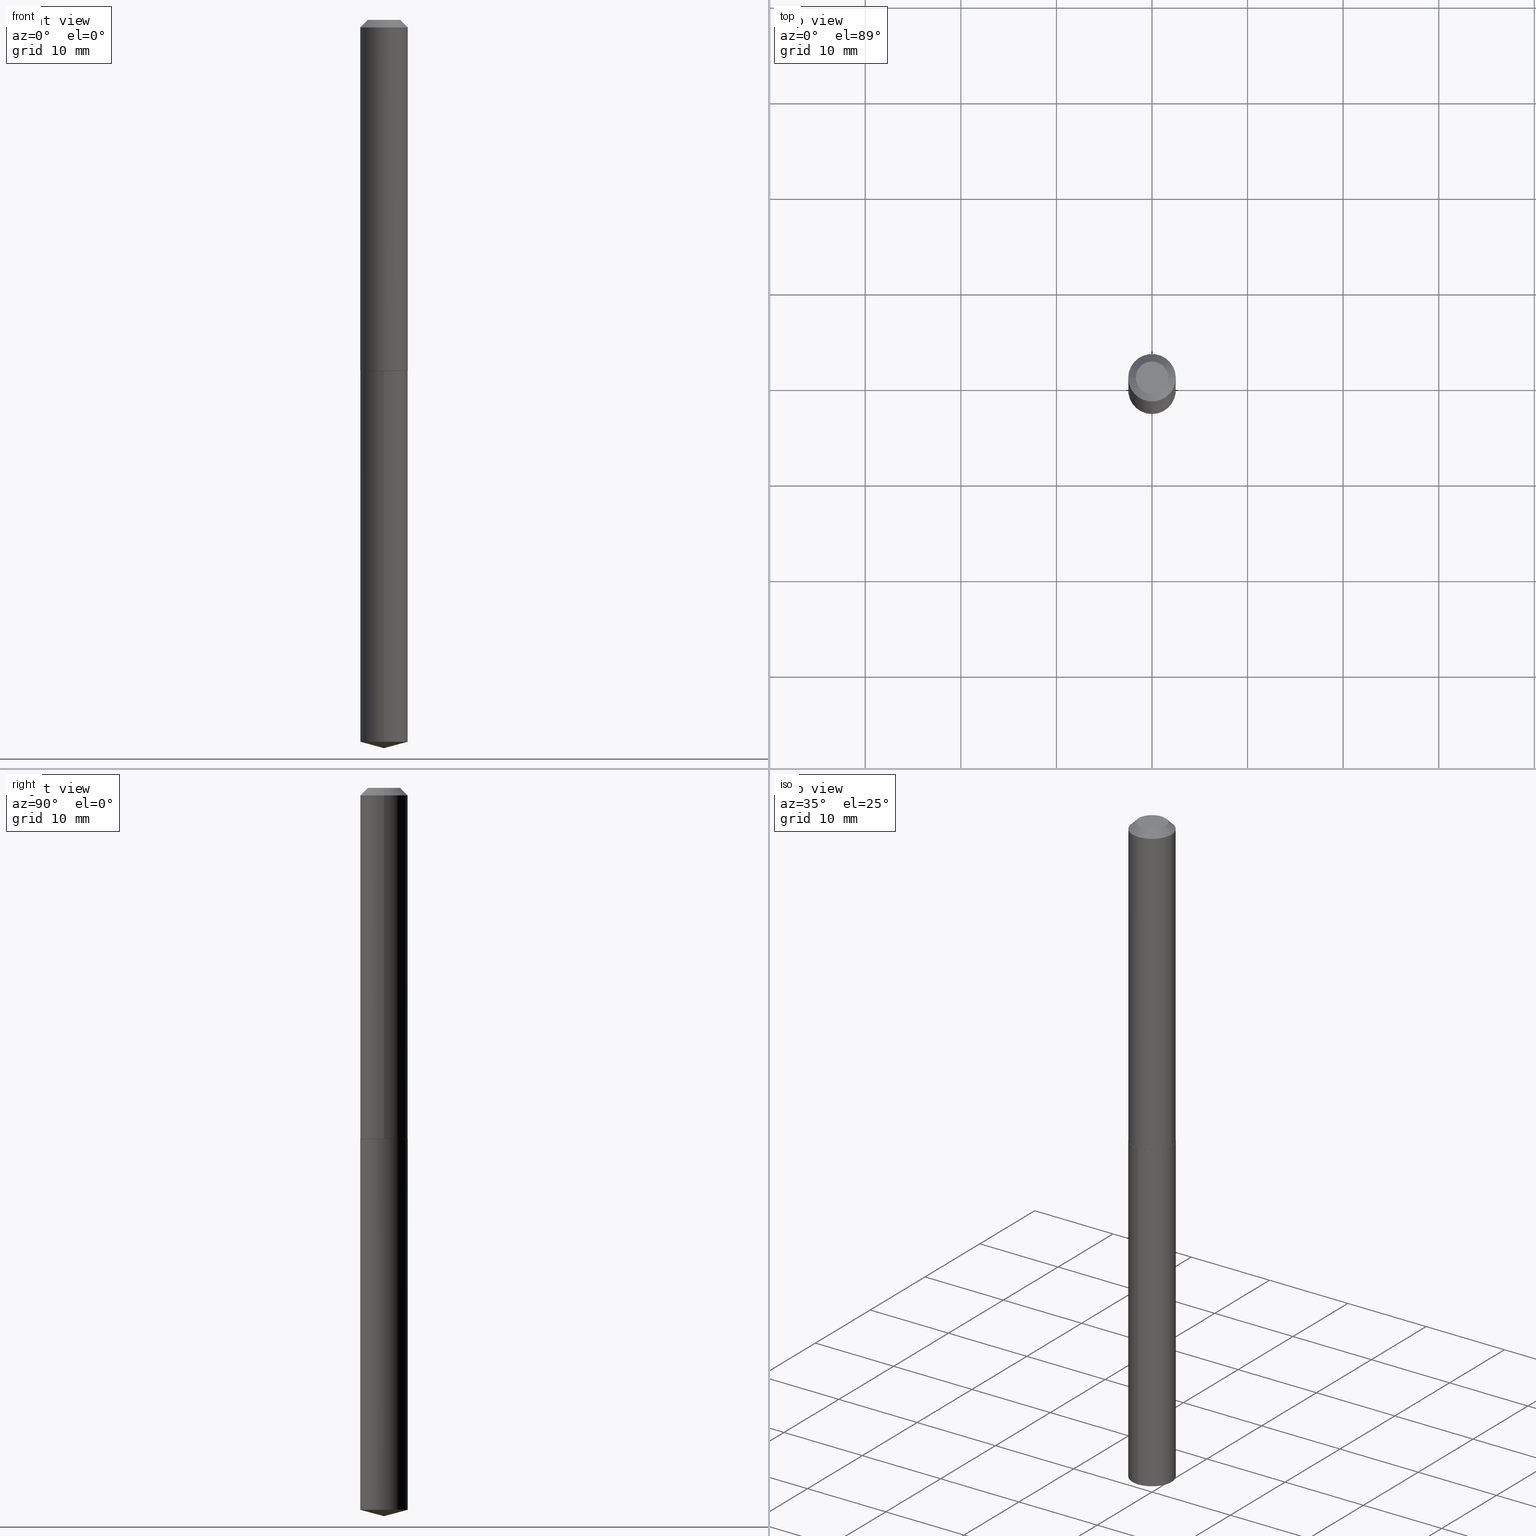
[diagram: canonical four-view strip — front | top / right | iso, engineering-drawing reading convention]
A machine part, canonical four-view strip (front | top / right | iso — engineering-drawing reading convention). The complete STEP part file that produces these views, byte-faithful:
ISO-10303-21;
HEADER;
FILE_DESCRIPTION (( 'STEP AP203' ),
    '1' );
FILE_NAME ('58044.STEP',
    '2024-04-23T00:48:45',
    ( '' ),
    ( '' ),
    'SwSTEP 2.0',
    'SolidWorks 2023',
    '' );
FILE_SCHEMA (( 'CONFIG_CONTROL_DESIGN' ));
ENDSEC;

DATA;
#1 = CARTESIAN_POINT ( 'NONE',  ( 6.963318810449705870E-16, 0.09799999999998960931, -2.973740979141750618 ) ) ;
#2 = EDGE_CURVE ( 'NONE', #343, #225, #13, .T. ) ;
#3 = DIRECTION ( 'NONE',  ( -2.445476842766525391E-29, 3.491469830001183236E-15, 1.000000000000000000 ) ) ;
#4 = DIRECTION ( 'NONE',  ( 2.445476842766525111E-29, -3.491469830001182842E-15, -1.000000000000000000 ) ) ;
#5 = APPLICATION_CONTEXT ( 'configuration controlled 3d designs of mechanical parts and assemblies' ) ;
#6 = CIRCLE ( 'NONE', #228, 0.06675000000000000377 ) ;
#7 = CARTESIAN_POINT ( 'NONE',  ( -6.843303424132187493E-16, -0.09800000000000505529, -1.445999999999999730 ) ) ;
#8 = EDGE_CURVE ( 'NONE', #292, #285, #87, .T. ) ;
#9 = CARTESIAN_POINT ( 'NONE',  ( -0.09800000000000015643, -4.350604394252867598E-15, -1.445500000000000229 ) ) ;
#10 = ORIENTED_EDGE ( 'NONE', *, *, #171, .F. ) ;
#11 = CC_DESIGN_PERSON_AND_ORGANIZATION_ASSIGNMENT ( #317, #46, ( #362 ) ) ;
#12 = ORIENTED_EDGE ( 'NONE', *, *, #113, .T. ) ;
#13 = CIRCLE ( 'NONE', #110, 0.09800000000000000377 ) ;
#14 = AXIS2_PLACEMENT_3D ( 'NONE', #303, #270, #183 ) ;
#15 = CC_DESIGN_DATE_AND_TIME_ASSIGNMENT ( #214, #27, ( #333 ) ) ;
#16 = EDGE_LOOP ( 'NONE', ( #47, #287, #290, #319 ) ) ;
#17 = EDGE_CURVE ( 'NONE', #310, #104, #260, .T. ) ;
#18 = DIRECTION ( 'NONE',  ( 1.000000000000000000, -6.982962677686266711E-15, 0.000000000000000000 ) ) ;
#19 = LOCAL_TIME ( 20, 48, 45.00000000000000000, #387 ) ;
#20 = AXIS2_PLACEMENT_3D ( 'NONE', #247, #4, #129 ) ;
#21 = ORIENTED_EDGE ( 'NONE', *, *, #83, .T. ) ;
#22 = APPROVAL_STATUS ( 'not_yet_approved' ) ;
#23 = PLANE ( 'NONE',  #312 ) ;
#24 = DIRECTION ( 'NONE',  ( 0.7071067811867406405, -2.468850131084279700E-15, 0.7071067811863543939 ) ) ;
#25 = ORIENTED_EDGE ( 'NONE', *, *, #275, .F. ) ;
#26 = EDGE_CURVE ( 'NONE', #296, #316, #251, .T. ) ;
#27 = DATE_TIME_ROLE ( 'creation_date' ) ;
#28 = VERTEX_POINT ( 'NONE', #174 ) ;
#29 = CARTESIAN_POINT ( 'NONE',  ( 7.272203079980314152E-29, -1.038274355269707335E-14, -2.973740979141749730 ) ) ;
#30 = PERSON_AND_ORGANIZATION ( #248, #313 ) ;
#31 = CARTESIAN_POINT ( 'NONE',  ( 7.642090019328598283E-31, -1.091087918388489651E-16, -0.03125000000000019429 ) ) ;
#32 = ADVANCED_FACE ( 'NONE', ( #210 ), #213, .T. ) ;
#33 = VECTOR ( 'NONE', #221, 39.37007874015748143 ) ;
#34 = DIRECTION ( 'NONE',  ( -2.445468806185136597E-29, 3.491481338843145583E-15, 1.000000000000000000 ) ) ;
#35 = ADVANCED_FACE ( 'NONE', ( #348 ), #334, .T. ) ;
#36 = LINE ( 'NONE', #190, #267 ) ;
#37 = AXIS2_PLACEMENT_3D ( 'NONE', #141, #324, #61 ) ;
#38 = ORIENTED_EDGE ( 'NONE', *, *, #280, .T. ) ;
#39 = AXIS2_PLACEMENT_3D ( 'NONE', #346, #79, #106 ) ;
#40 = APPROVAL ( #244, 'UNSPECIFIED' ) ;
#41 = DIRECTION ( 'NONE',  ( -6.982962677686265922E-15, -1.000000000000000000, 2.787599993534962411E-15 ) ) ;
#42 = EDGE_LOOP ( 'NONE', ( #385, #227, #151, #107 ) ) ;
#43 = ADVANCED_FACE ( 'NONE', ( #82 ), #218, .T. ) ;
#44 = ORIENTED_EDGE ( 'NONE', *, *, #306, .F. ) ;
#45 = DESIGN_CONTEXT ( 'detailed design', #125, 'design' ) ;
#46 = PERSON_AND_ORGANIZATION_ROLE ( 'design_owner' ) ;
#47 = ORIENTED_EDGE ( 'NONE', *, *, #237, .T. ) ;
#48 = LINE ( 'NONE', #81, #191 ) ;
#49 = VECTOR ( 'NONE', #196, 39.37007874015748143 ) ;
#50 = VECTOR ( 'NONE', #162, 39.37007874015748143 ) ;
#51 = VECTOR ( 'NONE', #100, 39.37007874015748143 ) ;
#52 = ORIENTED_EDGE ( 'NONE', *, *, #2, .T. ) ;
#53 = CARTESIAN_POINT ( 'NONE',  ( 7.642090019328598283E-31, -1.091087918388489651E-16, -0.03125000000000019429 ) ) ;
#54 = DIRECTION ( 'NONE',  ( -6.982962677686265922E-15, -1.000000000000000000, 2.787599993534962411E-15 ) ) ;
#55 = DIRECTION ( 'NONE',  ( 1.000000000000000000, -6.982962677686271444E-15, 0.000000000000000000 ) ) ;
#56 = ADVANCED_FACE ( 'NONE', ( #273 ), #23, .F. ) ;
#57 = APPROVAL_DATE_TIME ( #238, #341 ) ;
#58 = CARTESIAN_POINT ( 'NONE',  ( 7.272203079980314152E-29, -1.038274355269707335E-14, -2.973740979141749730 ) ) ;
#59 = FACE_OUTER_BOUND ( 'NONE', #388, .T. ) ;
#60 = PERSON_AND_ORGANIZATION ( #248, #313 ) ;
#61 = DIRECTION ( 'NONE',  ( 1.000000000000000000, -6.982962677686271444E-15, 0.000000000000000000 ) ) ;
#62 = DIRECTION ( 'NONE',  ( -6.982962677686265922E-15, -1.000000000000000000, 5.575199987069924823E-15 ) ) ;
#63 = AXIS2_PLACEMENT_3D ( 'NONE', #31, #353, #332 ) ;
#64 = LOCAL_TIME ( 20, 48, 45.00000000000000000, #331 ) ;
#65 = CALENDAR_DATE ( 2024, 22, 4 ) ;
#66 = EDGE_CURVE ( 'NONE', #28, #343, #201, .T. ) ;
#67 = DIRECTION ( 'NONE',  ( 6.863315791527686371E-15, 0.9659258262890684232, 0.2588190451025201289 ) ) ;
#68 = FACE_OUTER_BOUND ( 'NONE', #315, .T. ) ;
#69 = AXIS2_PLACEMENT_3D ( 'NONE', #168, #88, #158 ) ;
#70 =( GEOMETRIC_REPRESENTATION_CONTEXT ( 3 ) GLOBAL_UNCERTAINTY_ASSIGNED_CONTEXT ( ( #105 ) ) GLOBAL_UNIT_ASSIGNED_CONTEXT ( ( #226, #136, #259 ) ) REPRESENTATION_CONTEXT ( 'NONE', 'WORKASPACE' ) );
#71 = FACE_OUTER_BOUND ( 'NONE', #155, .T. ) ;
#72 = CARTESIAN_POINT ( 'NONE',  ( 0.09800000000000000377, -7.934391342521031515E-16, -0.03125000000000019429 ) ) ;
#73 = ORIENTED_EDGE ( 'NONE', *, *, #89, .T. ) ;
#74 = ORIENTED_EDGE ( 'NONE', *, *, #17, .F. ) ;
#75 = ORIENTED_EDGE ( 'NONE', *, *, #243, .F. ) ;
#76 = ORIENTED_EDGE ( 'NONE', *, *, #202, .T. ) ;
#77 = AXIS2_PLACEMENT_3D ( 'NONE', #112, #326, #232 ) ;
#78 = PRODUCT_DEFINITION_FORMATION_WITH_SPECIFIED_SOURCE ( 'ANY', '', #362, .NOT_KNOWN. ) ;
#79 = DIRECTION ( 'NONE',  ( 0.000000000000000000, 0.000000000000000000, 1.000000000000000000 ) ) ;
#80 = DIRECTION ( 'NONE',  ( -6.982962677686265922E-15, -1.000000000000000000, 3.510303681827680271E-15 ) ) ;
#81 = CARTESIAN_POINT ( 'NONE',  ( 0.09800000000000000377, -7.814375956204590920E-16, -0.03125000000000019429 ) ) ;
#82 = FACE_OUTER_BOUND ( 'NONE', #119, .T. ) ;
#83 = EDGE_CURVE ( 'NONE', #177, #292, #118, .T. ) ;
#84 = PERSON_AND_ORGANIZATION_ROLE ( 'creator' ) ;
#85 = ORIENTED_EDGE ( 'NONE', *, *, #128, .T. ) ;
#86 = PERSON_AND_ORGANIZATION ( #248, #313 ) ;
#87 = LINE ( 'NONE', #148, #173 ) ;
#88 = DIRECTION ( 'NONE',  ( -2.445476842766525391E-29, 3.491469830001183236E-15, 1.000000000000000000 ) ) ;
#89 = EDGE_CURVE ( 'NONE', #285, #134, #366, .T. ) ;
#90 = PERSON_AND_ORGANIZATION ( #248, #313 ) ;
#91 = FACE_OUTER_BOUND ( 'NONE', #139, .T. ) ;
#92 = AXIS2_PLACEMENT_3D ( 'NONE', #185, #116, #354 ) ;
#93 = COORDINATED_UNIVERSAL_TIME_OFFSET ( 5, 0, .BEHIND. ) ;
#94 = DIRECTION ( 'NONE',  ( 1.000000000000000000, -6.982962677686269866E-15, 0.000000000000000000 ) ) ;
#95 = EDGE_CURVE ( 'NONE', #316, #296, #234, .T. ) ;
#96 = CONICAL_SURFACE ( 'NONE', #170, 0.09800000000000015643, 0.7853981633977213939 ) ;
#97 = VECTOR ( 'NONE', #182, 39.37007874015748143 ) ;
#98 = CARTESIAN_POINT ( 'NONE',  ( -0.06675000000000000377, 5.206671546549817804E-16, 1.530808498899695196E-19 ) ) ;
#99 = CARTESIAN_POINT ( 'NONE',  ( -0.09750000000000025313, -4.353253621426978011E-15, -1.445999999999999730 ) ) ;
#100 = DIRECTION ( 'NONE',  ( -0.7071067811867406405, 7.493145998871051513E-15, 0.7071067811863543939 ) ) ;
#101 =( LENGTH_UNIT ( ) NAMED_UNIT ( * ) SI_UNIT ( $, .METRE. ) );
#102 = ORIENTED_EDGE ( 'NONE', *, *, #128, .F. ) ;
#103 = LOCAL_TIME ( 20, 48, 45.00000000000000000, #115 ) ;
#104 = VERTEX_POINT ( 'NONE', #99 ) ;
#105 = UNCERTAINTY_MEASURE_WITH_UNIT (LENGTH_MEASURE( 1.000000000000000082E-05 ), #226, 'distance_accuracy_value', 'NONE');
#106 = DIRECTION ( 'NONE',  ( 1.000000000000000000, 0.000000000000000000, 0.000000000000000000 ) ) ;
#107 = ORIENTED_EDGE ( 'NONE', *, *, #95, .F. ) ;
#108 = ADVANCED_FACE ( 'NONE', ( #114 ), #135, .T. ) ;
#109 = ORIENTED_EDGE ( 'NONE', *, *, #8, .T. ) ;
#110 = AXIS2_PLACEMENT_3D ( 'NONE', #58, #298, #263 ) ;
#111 = DIRECTION ( 'NONE',  ( -2.445476842766525391E-29, 3.491469830001183236E-15, 1.000000000000000000 ) ) ;
#112 = CARTESIAN_POINT ( 'NONE',  ( -8.894219694954694186E-28, 1.269850159942418059E-13, 36.37007874015748143 ) ) ;
#113 = EDGE_CURVE ( 'NONE', #231, #285, #48, .T. ) ;
#114 = FACE_OUTER_BOUND ( 'NONE', #42, .T. ) ;
#115 = COORDINATED_UNIVERSAL_TIME_OFFSET ( 5, 0, .BEHIND. ) ;
#116 = DIRECTION ( 'NONE',  ( -2.445476842766525391E-29, 3.491469830001183236E-15, 1.000000000000000000 ) ) ;
#117 = DIRECTION ( 'NONE',  ( -2.445468806185136597E-29, 3.491481338843145583E-15, 1.000000000000000000 ) ) ;
#118 = CIRCLE ( 'NONE', #289, 0.09800000000000015643 ) ;
#119 = EDGE_LOOP ( 'NONE', ( #205, #85, #223 ) ) ;
#120 = CARTESIAN_POINT ( 'NONE',  ( 7.642090019328598283E-31, -1.091087918388489651E-16, -0.03125000000000019429 ) ) ;
#121 = PERSON_AND_ORGANIZATION ( #248, #313 ) ;
#122 = CARTESIAN_POINT ( 'NONE',  ( -8.894219694954694186E-28, 1.269850159942418059E-13, 36.37007874015748143 ) ) ;
#123 = DIRECTION ( 'NONE',  ( 1.000000000000000000, -6.982962677686271444E-15, 0.000000000000000000 ) ) ;
#124 = CALENDAR_DATE ( 2024, 22, 4 ) ;
#125 = APPLICATION_CONTEXT ( 'configuration controlled 3d designs of mechanical parts and assemblies' ) ;
#126 = CARTESIAN_POINT ( 'NONE',  ( 3.534925159340615318E-29, -5.046936275297767188E-15, -1.445500000000000229 ) ) ;
#127 = CARTESIAN_POINT ( 'NONE',  ( 0.000000000000000000, 0.000000000000000000, 0.000000000000000000 ) ) ;
#128 = EDGE_CURVE ( 'NONE', #28, #225, #164, .T. ) ;
#129 = DIRECTION ( 'NONE',  ( 6.982962677686265922E-15, 1.000000000000000000, -3.491469830001182842E-15 ) ) ;
#130 = DIRECTION ( 'NONE',  ( -2.445468806185136597E-29, 3.491481338843145583E-15, 1.000000000000000000 ) ) ;
#131 = AXIS2_PLACEMENT_3D ( 'NONE', #377, #111, #54 ) ;
#132 = AXIS2_PLACEMENT_3D ( 'NONE', #127, #34, #365 ) ;
#133 = CARTESIAN_POINT ( 'NONE',  ( 0.000000000000000000, 0.000000000000000000, 0.000000000000000000 ) ) ;
#134 = VERTEX_POINT ( 'NONE', #206 ) ;
#135 = CYLINDRICAL_SURFACE ( 'NONE', #69, 0.09800000000000000377 ) ;
#136 =( NAMED_UNIT ( * ) PLANE_ANGLE_UNIT ( ) SI_UNIT ( $, .RADIAN. ) );
#137 = EDGE_LOOP ( 'NONE', ( #369, #38, #382, #165 ) ) ;
#138 = AXIS2_PLACEMENT_3D ( 'NONE', #29, #189, #62 ) ;
#139 = EDGE_LOOP ( 'NONE', ( #351, #258, #372, #257 ) ) ;
#140 = ORIENTED_EDGE ( 'NONE', *, *, #26, .F. ) ;
#141 = CARTESIAN_POINT ( 'NONE',  ( 3.534925159340615318E-29, -5.046936275297767188E-15, -1.445500000000000229 ) ) ;
#142 = AXIS2_PLACEMENT_3D ( 'NONE', #53, #180, #18 ) ;
#143 = EDGE_CURVE ( 'NONE', #347, #231, #6, .T. ) ;
#144 = PERSON_AND_ORGANIZATION_ROLE ( 'classification_officer' ) ;
#145 = ORIENTED_EDGE ( 'NONE', *, *, #95, .T. ) ;
#146 = APPROVAL ( #204, 'UNSPECIFIED' ) ;
#147 = APPROVAL_ROLE ( '' ) ;
#148 = CARTESIAN_POINT ( 'NONE',  ( 0.09800000000000008704, -6.843303424132548397E-16, 4.778653240280021785E-30 ) ) ;
#149 = DIRECTION ( 'NONE',  ( -2.445468806185136597E-29, 3.491481338843145583E-15, 1.000000000000000000 ) ) ;
#150 = APPROVAL_ROLE ( '' ) ;
#151 = ORIENTED_EDGE ( 'NONE', *, *, #360, .T. ) ;
#152 = DIRECTION ( 'NONE',  ( 1.000000000000000000, -6.982962677686271444E-15, 0.000000000000000000 ) ) ;
#153 = AXIS2_PLACEMENT_3D ( 'NONE', #249, #338, #94 ) ;
#154 = PERSON_AND_ORGANIZATION_ROLE ( 'creator' ) ;
#155 = EDGE_LOOP ( 'NONE', ( #236, #21, #109, #75 ) ) ;
#156 = DATE_TIME_ROLE ( 'classification_date' ) ;
#157 = FACE_OUTER_BOUND ( 'NONE', #166, .T. ) ;
#158 = DIRECTION ( 'NONE',  ( -6.982962677686265922E-15, -1.000000000000000000, 2.787599993534962411E-15 ) ) ;
#159 = CC_DESIGN_APPROVAL ( #40, ( #293 ) ) ;
#160 = ADVANCED_FACE ( 'NONE', ( #91 ), #219, .T. ) ;
#161 = FACE_OUTER_BOUND ( 'NONE', #16, .T. ) ;
#162 = DIRECTION ( 'NONE',  ( -2.445476842766525391E-29, 3.491469830001182842E-15, 1.000000000000000000 ) ) ;
#163 = CARTESIAN_POINT ( 'NONE',  ( 3.536147893743707559E-29, -5.048682015967188692E-15, -1.446000000000000174 ) ) ;
#164 = LINE ( 'NONE', #328, #352 ) ;
#165 = ORIENTED_EDGE ( 'NONE', *, *, #202, .F. ) ;
#166 = EDGE_LOOP ( 'NONE', ( #74, #203 ) ) ;
#167 = ORIENTED_EDGE ( 'NONE', *, *, #376, .T. ) ;
#168 = CARTESIAN_POINT ( 'NONE',  ( 3.536147893743707559E-29, -5.048682015967188692E-15, -1.446000000000000174 ) ) ;
#169 = ADVANCED_BREP_SHAPE_REPRESENTATION ( '58044', ( #383, #262, #39 ), #70 ) ;
#170 = AXIS2_PLACEMENT_3D ( 'NONE', #325, #389, #123 ) ;
#171 = EDGE_CURVE ( 'NONE', #225, #343, #192, .T. ) ;
#172 = ORIENTED_EDGE ( 'NONE', *, *, #280, .F. ) ;
#173 = VECTOR ( 'NONE', #327, 39.37007874015748143 ) ;
#174 = CARTESIAN_POINT ( 'NONE',  ( 7.336430528299575892E-29, -1.047440949000354971E-14, -3.000000000000000444 ) ) ;
#175 = ADVANCED_FACE ( 'NONE', ( #302 ), #96, .T. ) ;
#176 = DATE_AND_TIME ( #184, #278 ) ;
#177 = VERTEX_POINT ( 'NONE', #386 ) ;
#178 = CC_DESIGN_SECURITY_CLASSIFICATION ( #293, ( #78 ) ) ;
#179 = CC_DESIGN_PERSON_AND_ORGANIZATION_ASSIGNMENT ( #90, #295, ( #78 ) ) ;
#180 = DIRECTION ( 'NONE',  ( -2.445468806185136597E-29, 3.491481338843145583E-15, 1.000000000000000000 ) ) ;
#181 = CARTESIAN_POINT ( 'NONE',  ( 0.06675000000000000377, -6.196879184858544596E-16, 1.530808498972157587E-19 ) ) ;
#182 = DIRECTION ( 'NONE',  ( -6.745023994389832822E-15, -0.9659258262890665359, 0.2588190451025269012 ) ) ;
#183 = DIRECTION ( 'NONE',  ( 1.000000000000000000, -6.982962677686265922E-15, 4.876176775795935793E-29 ) ) ;
#184 = CALENDAR_DATE ( 2024, 22, 4 ) ;
#185 = CARTESIAN_POINT ( 'NONE',  ( 3.536147893743707559E-29, -5.048682015967188692E-15, -1.446000000000000174 ) ) ;
#186 = CLOSED_SHELL ( 'NONE', ( #311, #43, #32, #108, #339 ) ) ;
#187 = DATE_AND_TIME ( #330, #64 ) ;
#188 = DIRECTION ( 'NONE',  ( 1.000000000000000000, -6.982962677686266711E-15, 4.876156761448327606E-29 ) ) ;
#189 = DIRECTION ( 'NONE',  ( -2.445476842766525391E-29, 3.491469830001183236E-15, 1.000000000000000000 ) ) ;
#190 = CARTESIAN_POINT ( 'NONE',  ( -0.09800000000000000377, 5.752215505744052460E-16, -0.03125000000000019429 ) ) ;
#191 = VECTOR ( 'NONE', #216, 39.37007874015748143 ) ;
#192 = CIRCLE ( 'NONE', #138, 0.09800000000000000377 ) ;
#193 = CYLINDRICAL_SURFACE ( 'NONE', #336, 0.09800000000000000377 ) ;
#194 = ADVANCED_FACE ( 'NONE', ( #157 ), #208, .F. ) ;
#195 = AXIS2_PLACEMENT_3D ( 'NONE', #207, #239, #379 ) ;
#196 = DIRECTION ( 'NONE',  ( -2.445468806185136877E-29, 3.491481338843145188E-15, 1.000000000000000000 ) ) ;
#197 = EDGE_LOOP ( 'NONE', ( #269, #283 ) ) ;
#198 = AXIS2_PLACEMENT_3D ( 'NONE', #126, #117, #152 ) ;
#199 = ORIENTED_EDGE ( 'NONE', *, *, #360, .F. ) ;
#200 = CLOSED_SHELL ( 'NONE', ( #209, #284, #35, #194, #175, #322, #160, #56 ) ) ;
#201 = LINE ( 'NONE', #265, #97 ) ;
#202 = EDGE_CURVE ( 'NONE', #310, #292, #242, .T. ) ;
#203 = ORIENTED_EDGE ( 'NONE', *, *, #344, .F. ) ;
#204 = APPROVAL_STATUS ( 'not_yet_approved' ) ;
#205 = ORIENTED_EDGE ( 'NONE', *, *, #66, .F. ) ;
#206 = CARTESIAN_POINT ( 'NONE',  ( -0.09800000000000000377, -1.881690652523408160E-15, -0.03125000000000019429 ) ) ;
#207 = CARTESIAN_POINT ( 'NONE',  ( 3.536147893743707559E-29, -5.048682015967187903E-15, -1.445999999999999730 ) ) ;
#208 = PLANE ( 'NONE',  #14 ) ;
#209 = ADVANCED_FACE ( 'NONE', ( #59 ), #282, .T. ) ;
#210 = FACE_OUTER_BOUND ( 'NONE', #345, .T. ) ;
#211 = CC_DESIGN_PERSON_AND_ORGANIZATION_ASSIGNMENT ( #86, #154, ( #333 ) ) ;
#212 = PERSON_AND_ORGANIZATION ( #248, #313 ) ;
#213 = CONICAL_SURFACE ( 'NONE', #77, 146.9311341562533357, 1.308996938995744319 ) ;
#214 = DATE_AND_TIME ( #297, #19 ) ;
#215 = LINE ( 'NONE', #314, #49 ) ;
#216 = DIRECTION ( 'NONE',  ( 0.7071067811865453523, -7.319954787623248157E-15, -0.7071067811865496822 ) ) ;
#217 = CARTESIAN_POINT ( 'NONE',  ( 6.963318810449334119E-16, 0.09799999999999495226, -1.446000000000000396 ) ) ;
#218 = CONICAL_SURFACE ( 'NONE', #304, 146.9311341562533357, 1.308996938995744319 ) ;
#219 = CONICAL_SURFACE ( 'NONE', #63, 0.09800000000000000377, 0.7853981633974452814 ) ;
#220 = CYLINDRICAL_SURFACE ( 'NONE', #132, 0.09800000000000008704 ) ;
#221 = DIRECTION ( 'NONE',  ( -2.445476842766525391E-29, 3.491469830001182842E-15, 1.000000000000000000 ) ) ;
#222 = LINE ( 'NONE', #253, #33 ) ;
#223 = ORIENTED_EDGE ( 'NONE', *, *, #2, .F. ) ;
#224 = CC_DESIGN_APPROVAL ( #341, ( #78 ) ) ;
#225 = VERTEX_POINT ( 'NONE', #1 ) ;
#226 =( CONVERSION_BASED_UNIT ( 'INCH', #373 ) LENGTH_UNIT ( ) NAMED_UNIT ( #380 ) );
#227 = ORIENTED_EDGE ( 'NONE', *, *, #171, .T. ) ;
#228 = AXIS2_PLACEMENT_3D ( 'NONE', #359, #274, #188 ) ;
#229 = APPROVAL_PERSON_ORGANIZATION ( #264, #341, #150 ) ;
#230 = MECHANICAL_CONTEXT ( 'NONE', #5, 'mechanical' ) ;
#231 = VERTEX_POINT ( 'NONE', #181 ) ;
#232 = DIRECTION ( 'NONE',  ( -6.982962677686265922E-15, -1.000000000000000000, 3.510303681827680271E-15 ) ) ;
#233 = CARTESIAN_POINT ( 'NONE',  ( 7.642090019328598283E-31, -1.091087918388489651E-16, -0.03125000000000019429 ) ) ;
#234 = CIRCLE ( 'NONE', #131, 0.09800000000000000377 ) ;
#235 = APPROVAL_ROLE ( '' ) ;
#236 = ORIENTED_EDGE ( 'NONE', *, *, #291, .F. ) ;
#237 = EDGE_CURVE ( 'NONE', #292, #177, #364, .T. ) ;
#238 = DATE_AND_TIME ( #65, #103 ) ;
#239 = DIRECTION ( 'NONE',  ( -2.445468806185136597E-29, 3.491481338843145583E-15, 1.000000000000000000 ) ) ;
#240 = APPROVAL_DATE_TIME ( #176, #146 ) ;
#241 = CARTESIAN_POINT ( 'NONE',  ( -1.871772216193336835E-48, 2.672394653685619639E-34, 7.654042494670988745E-20 ) ) ;
#242 = LINE ( 'NONE', #276, #350 ) ;
#243 = EDGE_CURVE ( 'NONE', #134, #285, #329, .T. ) ;
#244 = APPROVAL_STATUS ( 'not_yet_approved' ) ;
#245 = DIRECTION ( 'NONE',  ( 1.000000000000000000, -6.982962677686266711E-15, 0.000000000000000000 ) ) ;
#246 = CIRCLE ( 'NONE', #153, 0.09750000000000025313 ) ;
#247 = CARTESIAN_POINT ( 'NONE',  ( 3.536147893743707559E-29, -5.048682015967188692E-15, -1.446000000000000174 ) ) ;
#248 = PERSON ( 'UNSPECIFIED', 'UNSPECIFIED', 'UNSPECIFIED', ('UNSPECIFIED'), ('UNSPECIFIED'), ('UNSPECIFIED') ) ;
#249 = CARTESIAN_POINT ( 'NONE',  ( 3.536147893743707559E-29, -5.048682015967187903E-15, -1.445999999999999730 ) ) ;
#250 = CYLINDRICAL_SURFACE ( 'NONE', #271, 0.09800000000000008704 ) ;
#251 = CIRCLE ( 'NONE', #92, 0.09800000000000000377 ) ;
#252 = PRODUCT_DEFINITION_SHAPE ( 'NONE', 'NONE',  #333 ) ;
#253 = CARTESIAN_POINT ( 'NONE',  ( -6.843303424132187493E-16, -0.09800000000000505529, -1.445999999999999730 ) ) ;
#254 = ORIENTED_EDGE ( 'NONE', *, *, #344, .T. ) ;
#255 = EDGE_LOOP ( 'NONE', ( #294, #145 ) ) ;
#256 = CC_DESIGN_APPROVAL ( #146, ( #333 ) ) ;
#257 = ORIENTED_EDGE ( 'NONE', *, *, #243, .T. ) ;
#258 = ORIENTED_EDGE ( 'NONE', *, *, #143, .F. ) ;
#259 =( NAMED_UNIT ( * ) SI_UNIT ( $, .STERADIAN. ) SOLID_ANGLE_UNIT ( ) );
#260 = CIRCLE ( 'NONE', #195, 0.09750000000000025313 ) ;
#261 = CARTESIAN_POINT ( 'NONE',  ( 3.534925159340615318E-29, -5.046936275297767188E-15, -1.445500000000000229 ) ) ;
#262 = MANIFOLD_SOLID_BREP ( 'Body-Move/Copy2[2]', #200 ) ;
#263 = DIRECTION ( 'NONE',  ( -6.982962677686265922E-15, -1.000000000000000000, 5.575199987069924823E-15 ) ) ;
#264 = PERSON_AND_ORGANIZATION ( #248, #313 ) ;
#265 = CARTESIAN_POINT ( 'NONE',  ( 7.336407286506200344E-29, -1.047444277357450562E-14, -3.000000000000000444 ) ) ;
#266 = DIRECTION ( 'NONE',  ( 2.445468806185136597E-29, -3.491481338843145583E-15, -1.000000000000000000 ) ) ;
#267 = VECTOR ( 'NONE', #340, 39.37007874015748143 ) ;
#268 = COORDINATED_UNIVERSAL_TIME_OFFSET ( 5, 0, .BEHIND. ) ;
#269 = ORIENTED_EDGE ( 'NONE', *, *, #143, .T. ) ;
#270 = DIRECTION ( 'NONE',  ( -2.438088387897960049E-29, 3.491481338843145188E-15, 1.000000000000000000 ) ) ;
#271 = AXIS2_PLACEMENT_3D ( 'NONE', #133, #361, #307 ) ;
#272 = APPLICATION_PROTOCOL_DEFINITION ( 'international standard', 'config_control_design', 1994, #125 ) ;
#273 = FACE_OUTER_BOUND ( 'NONE', #197, .T. ) ;
#274 = DIRECTION ( 'NONE',  ( -2.445468806185136597E-29, 3.491481338843145583E-15, 1.000000000000000000 ) ) ;
#275 = EDGE_CURVE ( 'NONE', #231, #347, #337, .T. ) ;
#276 = CARTESIAN_POINT ( 'NONE',  ( 0.09800000000000015643, -5.731266617711022619E-15, -1.445500000000000229 ) ) ;
#277 = PRODUCT_RELATED_PRODUCT_CATEGORY ( 'detail', '', ( #362 ) ) ;
#278 = LOCAL_TIME ( 20, 48, 45.00000000000000000, #93 ) ;
#279 = PLANE ( 'NONE',  #20 ) ;
#280 = EDGE_CURVE ( 'NONE', #104, #177, #281, .T. ) ;
#281 = LINE ( 'NONE', #9, #51 ) ;
#282 = CONICAL_SURFACE ( 'NONE', #384, 0.09800000000000000377, 0.7853981633974452814 ) ;
#283 = ORIENTED_EDGE ( 'NONE', *, *, #275, .T. ) ;
#284 = ADVANCED_FACE ( 'NONE', ( #161 ), #250, .T. ) ;
#285 = VERTEX_POINT ( 'NONE', #72 ) ;
#286 = CC_DESIGN_PERSON_AND_ORGANIZATION_ASSIGNMENT ( #60, #144, ( #293 ) ) ;
#287 = ORIENTED_EDGE ( 'NONE', *, *, #291, .T. ) ;
#288 = AXIS2_PLACEMENT_3D ( 'NONE', #355, #130, #363 ) ;
#289 = AXIS2_PLACEMENT_3D ( 'NONE', #261, #320, #55 ) ;
#290 = ORIENTED_EDGE ( 'NONE', *, *, #89, .F. ) ;
#291 = EDGE_CURVE ( 'NONE', #177, #134, #215, .T. ) ;
#292 = VERTEX_POINT ( 'NONE', #308 ) ;
#293 = SECURITY_CLASSIFICATION ( '', '', #381 ) ;
#294 = ORIENTED_EDGE ( 'NONE', *, *, #26, .T. ) ;
#295 = PERSON_AND_ORGANIZATION_ROLE ( 'design_supplier' ) ;
#296 = VERTEX_POINT ( 'NONE', #7 ) ;
#297 = CALENDAR_DATE ( 2024, 22, 4 ) ;
#298 = DIRECTION ( 'NONE',  ( -2.445476842766525391E-29, 3.491469830001183236E-15, 1.000000000000000000 ) ) ;
#299 = APPROVAL_DATE_TIME ( #187, #40 ) ;
#300 = DIRECTION ( 'NONE',  ( -2.445476842766525391E-29, 3.491469830001183236E-15, 1.000000000000000000 ) ) ;
#301 = APPROVAL_PERSON_ORGANIZATION ( #30, #146, #147 ) ;
#302 = FACE_OUTER_BOUND ( 'NONE', #374, .T. ) ;
#303 = CARTESIAN_POINT ( 'NONE',  ( 6.365323654968062873E-29, -9.971412992097339662E-16, -1.445999999999999730 ) ) ;
#304 = AXIS2_PLACEMENT_3D ( 'NONE', #122, #300, #80 ) ;
#305 = FACE_OUTER_BOUND ( 'NONE', #255, .T. ) ;
#306 = EDGE_CURVE ( 'NONE', #347, #134, #36, .T. ) ;
#307 = DIRECTION ( 'NONE',  ( 1.000000000000000000, -6.982962677686267499E-15, 4.876176775795936353E-29 ) ) ;
#308 = CARTESIAN_POINT ( 'NONE',  ( 0.09800000000000015643, -5.731266617711022619E-15, -1.445500000000000229 ) ) ;
#309 = LINE ( 'NONE', #217, #50 ) ;
#310 = VERTEX_POINT ( 'NONE', #335 ) ;
#311 = ADVANCED_FACE ( 'NONE', ( #68 ), #193, .T. ) ;
#312 = AXIS2_PLACEMENT_3D ( 'NONE', #241, #357, #321 ) ;
#313 = ORGANIZATION ( 'UNSPECIFIED', 'UNSPECIFIED', '' ) ;
#314 = CARTESIAN_POINT ( 'NONE',  ( -0.09800000000000008704, 6.963318810448988006E-16, -4.820556388449811965E-30 ) ) ;
#315 = EDGE_LOOP ( 'NONE', ( #52, #167, #140, #199 ) ) ;
#316 = VERTEX_POINT ( 'NONE', #368 ) ;
#317 = PERSON_AND_ORGANIZATION ( #248, #313 ) ;
#318 = APPROVAL_PERSON_ORGANIZATION ( #212, #40, #235 ) ;
#319 = ORIENTED_EDGE ( 'NONE', *, *, #8, .F. ) ;
#320 = DIRECTION ( 'NONE',  ( -2.445468806185136597E-29, 3.491481338843145583E-15, 1.000000000000000000 ) ) ;
#321 = DIRECTION ( 'NONE',  ( -1.000000000000000000, 6.982962677686265922E-15, -4.876176775795935793E-29 ) ) ;
#322 = ADVANCED_FACE ( 'NONE', ( #71 ), #220, .T. ) ;
#323 = LOCAL_TIME ( 20, 48, 45.00000000000000000, #268 ) ;
#324 = DIRECTION ( 'NONE',  ( -2.445468806185136597E-29, 3.491481338843145583E-15, 1.000000000000000000 ) ) ;
#325 = CARTESIAN_POINT ( 'NONE',  ( 3.534925159340615318E-29, -5.046936275297767188E-15, -1.445500000000000229 ) ) ;
#326 = DIRECTION ( 'NONE',  ( -2.445476842766525391E-29, 3.491469830001183236E-15, 1.000000000000000000 ) ) ;
#327 = DIRECTION ( 'NONE',  ( -2.445468806185136877E-29, 3.491481338843145188E-15, 1.000000000000000000 ) ) ;
#328 = CARTESIAN_POINT ( 'NONE',  ( 7.336430732102670118E-29, -1.047440949000354971E-14, -3.000000000000000444 ) ) ;
#329 = CIRCLE ( 'NONE', #375, 0.09800000000000000377 ) ;
#330 = CALENDAR_DATE ( 2024, 22, 4 ) ;
#331 = COORDINATED_UNIVERSAL_TIME_OFFSET ( 5, 0, .BEHIND. ) ;
#332 = DIRECTION ( 'NONE',  ( -1.000000000000000000, 6.982962677686266711E-15, 0.000000000000000000 ) ) ;
#333 = PRODUCT_DEFINITION ( 'UNKNOWN', '', #78, #45 ) ;
#334 = CONICAL_SURFACE ( 'NONE', #37, 0.09800000000000015643, 0.7853981633977213939 ) ;
#335 = CARTESIAN_POINT ( 'NONE',  ( 0.09750000000000025313, -5.729520877041600327E-15, -1.445999999999999730 ) ) ;
#336 = AXIS2_PLACEMENT_3D ( 'NONE', #163, #3, #41 ) ;
#337 = CIRCLE ( 'NONE', #288, 0.06675000000000000377 ) ;
#338 = DIRECTION ( 'NONE',  ( -2.445468806185136597E-29, 3.491481338843145583E-15, 1.000000000000000000 ) ) ;
#339 = ADVANCED_FACE ( 'NONE', ( #305 ), #279, .F. ) ;
#340 = DIRECTION ( 'NONE',  ( -0.7071067811865453523, 2.468850131082234184E-15, -0.7071067811865496822 ) ) ;
#341 = APPROVAL ( #22, 'UNSPECIFIED' ) ;
#342 = ORIENTED_EDGE ( 'NONE', *, *, #66, .T. ) ;
#343 = VERTEX_POINT ( 'NONE', #367 ) ;
#344 = EDGE_CURVE ( 'NONE', #104, #310, #246, .T. ) ;
#345 = EDGE_LOOP ( 'NONE', ( #102, #342, #10 ) ) ;
#346 = CARTESIAN_POINT ( 'NONE',  ( 0.000000000000000000, 0.000000000000000000, 0.000000000000000000 ) ) ;
#347 = VERTEX_POINT ( 'NONE', #98 ) ;
#348 = FACE_OUTER_BOUND ( 'NONE', #137, .T. ) ;
#349 = CC_DESIGN_PERSON_AND_ORGANIZATION_ASSIGNMENT ( #121, #84, ( #78 ) ) ;
#350 = VECTOR ( 'NONE', #24, 39.37007874015748143 ) ;
#351 = ORIENTED_EDGE ( 'NONE', *, *, #113, .F. ) ;
#352 = VECTOR ( 'NONE', #67, 39.37007874015748143 ) ;
#353 = DIRECTION ( 'NONE',  ( 2.445468806185136597E-29, -3.491481338843145583E-15, -1.000000000000000000 ) ) ;
#354 = DIRECTION ( 'NONE',  ( -6.982962677686265922E-15, -1.000000000000000000, 2.787599993534962411E-15 ) ) ;
#355 = CARTESIAN_POINT ( 'NONE',  ( -3.743544432386673670E-48, 5.344789307371239278E-34, 1.530808498934197749E-19 ) ) ;
#356 = DATE_AND_TIME ( #124, #323 ) ;
#357 = DIRECTION ( 'NONE',  ( 2.438088387897960049E-29, -3.491481338843145188E-15, -1.000000000000000000 ) ) ;
#358 = DIRECTION ( 'NONE',  ( -1.000000000000000000, 6.982962677686266711E-15, 0.000000000000000000 ) ) ;
#359 = CARTESIAN_POINT ( 'NONE',  ( -3.743544432386673670E-48, 5.344789307371239278E-34, 1.530808498934197749E-19 ) ) ;
#360 = EDGE_CURVE ( 'NONE', #343, #296, #222, .T. ) ;
#361 = DIRECTION ( 'NONE',  ( -2.445468806185136597E-29, 3.491481338843145583E-15, 1.000000000000000000 ) ) ;
#362 = PRODUCT ( '58044', '58044', '', ( #230 ) ) ;
#363 = DIRECTION ( 'NONE',  ( 1.000000000000000000, -6.982962677686266711E-15, 4.876156761448327606E-29 ) ) ;
#364 = CIRCLE ( 'NONE', #198, 0.09800000000000015643 ) ;
#365 = DIRECTION ( 'NONE',  ( 1.000000000000000000, -6.982962677686267499E-15, 4.876176775795936353E-29 ) ) ;
#366 = CIRCLE ( 'NONE', #142, 0.09800000000000000377 ) ;
#367 = CARTESIAN_POINT ( 'NONE',  ( -6.843303424131812784E-16, -0.09800000000001035660, -2.973740979141749285 ) ) ;
#368 = CARTESIAN_POINT ( 'NONE',  ( 6.963318810449708828E-16, 0.09799999999999493838, -1.446000000000000396 ) ) ;
#369 = ORIENTED_EDGE ( 'NONE', *, *, #17, .T. ) ;
#370 = ORIENTED_EDGE ( 'NONE', *, *, #83, .F. ) ;
#371 = APPLICATION_PROTOCOL_DEFINITION ( 'international standard', 'config_control_design', 1994, #5 ) ;
#372 = ORIENTED_EDGE ( 'NONE', *, *, #306, .T. ) ;
#373 = LENGTH_MEASURE_WITH_UNIT ( LENGTH_MEASURE( 0.02539999999999999897 ), #101 );
#374 = EDGE_LOOP ( 'NONE', ( #172, #254, #76, #370 ) ) ;
#375 = AXIS2_PLACEMENT_3D ( 'NONE', #120, #149, #245 ) ;
#376 = EDGE_CURVE ( 'NONE', #225, #316, #309, .T. ) ;
#377 = CARTESIAN_POINT ( 'NONE',  ( 3.536147893743707559E-29, -5.048682015967188692E-15, -1.446000000000000174 ) ) ;
#378 = CC_DESIGN_DATE_AND_TIME_ASSIGNMENT ( #356, #156, ( #293 ) ) ;
#379 = DIRECTION ( 'NONE',  ( 1.000000000000000000, -6.982962677686269866E-15, 0.000000000000000000 ) ) ;
#380 = DIMENSIONAL_EXPONENTS ( 1.000000000000000000, 0.000000000000000000, 0.000000000000000000, 0.000000000000000000, 0.000000000000000000, 0.000000000000000000, 0.000000000000000000 ) ;
#381 = SECURITY_CLASSIFICATION_LEVEL ( 'unclassified' ) ;
#382 = ORIENTED_EDGE ( 'NONE', *, *, #237, .F. ) ;
#383 = MANIFOLD_SOLID_BREP ( 'Body-Move/Copy2[1]', #186 ) ;
#384 = AXIS2_PLACEMENT_3D ( 'NONE', #233, #266, #358 ) ;
#385 = ORIENTED_EDGE ( 'NONE', *, *, #376, .F. ) ;
#386 = CARTESIAN_POINT ( 'NONE',  ( -0.09800000000000015643, -4.350604394252867598E-15, -1.445500000000000229 ) ) ;
#387 = COORDINATED_UNIVERSAL_TIME_OFFSET ( 5, 0, .BEHIND. ) ;
#388 = EDGE_LOOP ( 'NONE', ( #25, #12, #73, #44 ) ) ;
#389 = DIRECTION ( 'NONE',  ( -2.445468806185136597E-29, 3.491481338843145583E-15, 1.000000000000000000 ) ) ;
#390 = SHAPE_DEFINITION_REPRESENTATION ( #252, #169 ) ;
ENDSEC;
END-ISO-10303-21;
